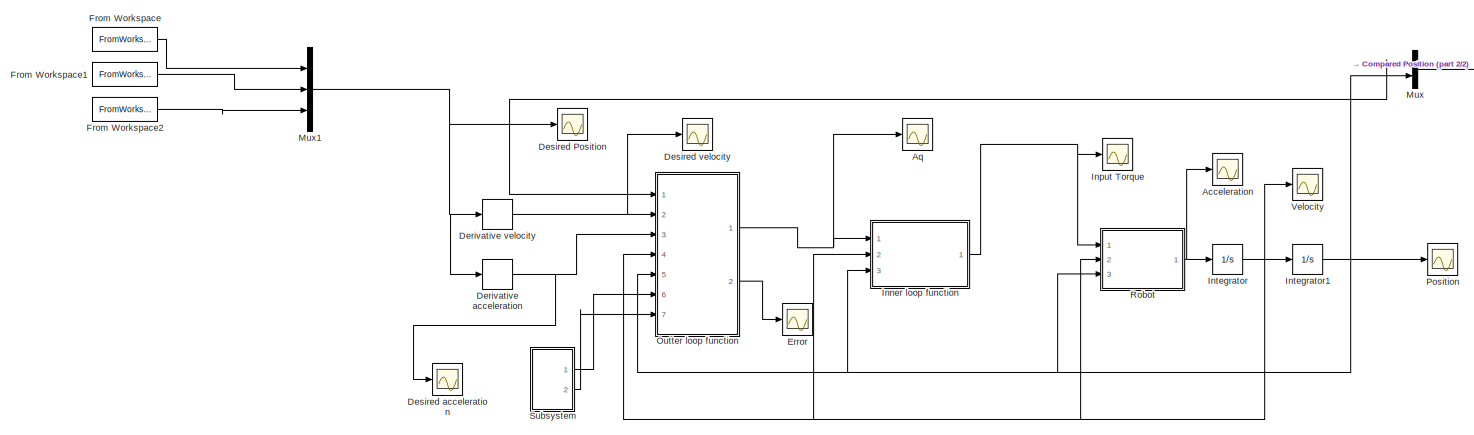
[diagram: root canvas - part 1/2, most of the canvas]
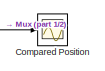
[diagram: root canvas - part 2/2, top right region]
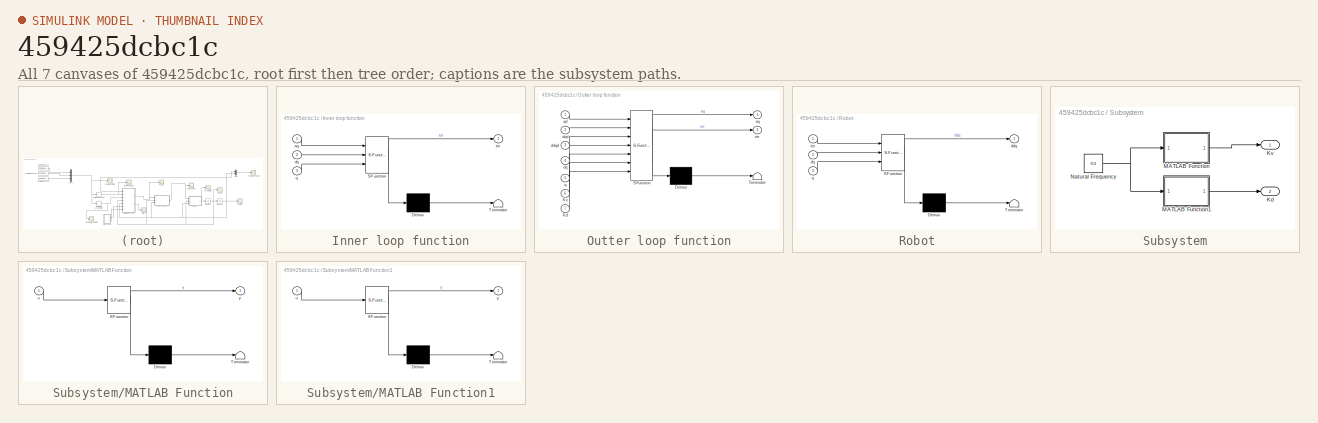
[diagram: thumbnail index - all 7 canvases of the model, root first then tree order]
MODEL slx_459425dcbc1c
KIND model
CONFIG AbsTol = auto
CONFIG EnableMultiTasking = off
CONFIG FixedStep = 0.1
CONFIG MaxStep = auto
CONFIG MinStep = auto
CONFIG RelTol = 1e-3
CONFIG SampleTimeConstraint = Unconstrained
CONFIG Solver = FixedStepAuto
CONFIG SolverName = FixedStepAuto
CONFIG StartTime = 0.0
CONFIG StopTime = 4
BLOCK [Scope] Acceleration
  Floating = off
  NumInputPorts = 1
  Ports = [1]
  ScopeSpecificationString = Simulink.scopes.TimeScopeBlockCfg('CurrentConfiguration', extmgr.ConfigurationSet(extmgr.Configuration('Core','General UI',true),extmgr.Configuration('Core','Source UI',true),extmgr.Configuration('Sources','WiredSimulink',true,'DataLoggingVariableName','ScopeData6'),extmgr.Configuration('Visuals','Time Domain',true),extmgr.Configuration('Tools','Plot Navigation',true),extmgr.Configuration('Tools',...<+40ch>
BLOCK [Scope] Aq
  Floating = off
  NumInputPorts = 1
  Ports = [1]
  ScopeSpecificationString = Simulink.scopes.TimeScopeBlockCfg('CurrentConfiguration', extmgr.ConfigurationSet(extmgr.Configuration('Core','General UI',true),extmgr.Configuration('Core','Source UI',true),extmgr.Configuration('Sources','WiredSimulink',true,'DataLoggingVariableName','ScopeData1'),extmgr.Configuration('Visuals','Time Domain',true,'SerializedDisplays',{struct('MinYLimReal','-381.69542','MaxYLimReal','1049.99861',...<+1487ch>
BLOCK [Scope] Compared Position
  Floating = off
  NumInputPorts = 1
  Ports = [1]
  ScopeSpecificationString = Simulink.scopes.TimeScopeBlockCfg('CurrentConfiguration', extmgr.ConfigurationSet(extmgr.Configuration('Core','General UI',true),extmgr.Configuration('Core','Source UI',true),extmgr.Configuration('Sources','WiredSimulink',true,'DataLoggingVariableName','ScopeData9'),extmgr.Configuration('Visuals','Time Domain',true,'SerializedDisplays',{struct('MinYLimReal','-7.04731','MaxYLimReal','63.40504','YLa...<+1490ch>
BLOCK [Derivative] Derivative acceleration
  CoefficientInTFapproximation = 0
BLOCK [Derivative] Derivative velocity
  CoefficientInTFapproximation = 0
BLOCK [Scope] Desired Position
  Floating = off
  NumInputPorts = 1
  Ports = [1]
  ScopeSpecificationString = Simulink.scopes.TimeScopeBlockCfg('CurrentConfiguration', extmgr.ConfigurationSet(extmgr.Configuration('Core','General UI',true),extmgr.Configuration('Core','Source UI',true),extmgr.Configuration('Sources','WiredSimulink',true,'DataLoggingVariableName','ScopeData5'),extmgr.Configuration('Visuals','Time Domain',true,'SerializedDisplays',{struct('MinYLimReal','-7.04731','MaxYLimReal','63.40504','YLa...<+1442ch>
BLOCK [Scope] Desired acceleration
  Floating = off
  NumInputPorts = 1
  Ports = [1]
  ScopeSpecificationString = Simulink.scopes.TimeScopeBlockCfg('CurrentConfiguration', extmgr.ConfigurationSet(extmgr.Configuration('Core','General UI',true),extmgr.Configuration('Core','Source UI',true),extmgr.Configuration('Sources','WiredSimulink',true,'DataLoggingVariableName','ScopeData2'),extmgr.Configuration('Visuals','Time Domain',true,'SerializedDisplays',{struct('MinYLimReal','-8846.62444','MaxYLimReal','13494.41194...<+1466ch>
BLOCK [Scope] Desired velocity 
  Floating = off
  NumInputPorts = 1
  Ports = [1]
  ScopeSpecificationString = Simulink.scopes.TimeScopeBlockCfg('CurrentConfiguration', extmgr.ConfigurationSet(extmgr.Configuration('Core','General UI',true),extmgr.Configuration('Core','Source UI',true),extmgr.Configuration('Sources','WiredSimulink',true),extmgr.Configuration('Visuals','Time Domain',true,'SerializedDisplays',{struct('MinYLimReal','-234.77394','MaxYLimReal','652.30601','YLabelReal','','MinYLimMag',' 0.00000',...<+1431ch>
BLOCK [Scope] Error
  Floating = off
  NumInputPorts = 1
  Ports = [1]
  ScopeSpecificationString = Simulink.scopes.TimeScopeBlockCfg('CurrentConfiguration', extmgr.ConfigurationSet(extmgr.Configuration('Core','General UI',true),extmgr.Configuration('Core','Source UI',true),extmgr.Configuration('Sources','WiredSimulink',true,'DataLoggingVariableName','ScopeData1'),extmgr.Configuration('Visuals','Time Domain',true,'SerializedDisplays',{struct('MinYLimReal','-9.16067','MaxYLimReal','63.63985','YLa...<+1475ch>
BLOCK [FromWorkspace] From Workspace
  Interpolate = off
  OutputAfterFinalValue = Setting to zero
  SampleTime = 0.1
  VariableName = path1
  ZeroCross = on
BLOCK [FromWorkspace] From Workspace1
  Interpolate = off
  OutputAfterFinalValue = Setting to zero
  SampleTime = 0.1
  VariableName = path2
  ZeroCross = on
BLOCK [FromWorkspace] From Workspace2
  Interpolate = off
  OutputAfterFinalValue = Setting to zero
  SampleTime = 0.1
  VariableName = path3
  ZeroCross = on
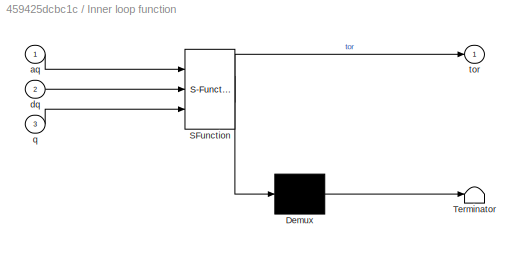
BLOCK [SubSystem] Inner loop function
  ErrorFcn = Stateflow.Translate.translate
  PermitHierarchicalResolution = ExplicitOnly
  Ports = [3, 1]
  RequestExecContextInheritance = off
  SFBlockType = MATLAB Function
  TreatAsAtomicUnit = on
BLOCK [Demux] Inner loop function/ Demux 
  Outputs = 1
  Ports = [1, 1]
BLOCK [S-Function] Inner loop function/ SFunction 
  EnableBusSupport = on
  FunctionName = sf_sfun
  PortCounts = [3 2]
  Ports = [3, 2]
  SFcnIsStateOwnerBlock = off
  SFunctionDeploymentMode = off
  Tag = Stateflow S-Function assignemnt_simulink 1
BLOCK [Terminator] Inner loop function/ Terminator 
BLOCK [Inport] Inner loop function/aq
  IconDisplay = Port number
BLOCK [Inport] Inner loop function/dq
  IconDisplay = Port number
  Port = 2
BLOCK [Inport] Inner loop function/q
  IconDisplay = Port number
  Port = 3
BLOCK [Outport] Inner loop function/tor
  IconDisplay = Port number
BLOCK [Scope] Input Torque
  Floating = off
  NumInputPorts = 1
  Ports = [1]
  ScopeSpecificationString = Simulink.scopes.TimeScopeBlockCfg('CurrentConfiguration', extmgr.ConfigurationSet(extmgr.Configuration('Core','General UI',true),extmgr.Configuration('Core','Source UI',true),extmgr.Configuration('Sources','WiredSimulink',true,'DataLoggingVariableName','ScopeData4'),extmgr.Configuration('Visuals','Time Domain',true,'SerializedDisplays',{struct('MinYLimReal','-3.92781','MaxYLimReal','12.08666','YLa...<+1474ch>
BLOCK [Integrator] Integrator
  InitialCondition = [0,0,0]
  Ports = [1, 1]
BLOCK [Integrator] Integrator1
  InitialCondition = [0,0,0]
  Ports = [1, 1]
BLOCK [Mux] Mux
  DisplayOption = bar
  Inputs = 2
  Ports = [2, 1]
BLOCK [Mux] Mux1
  DisplayOption = bar
  Inputs = 3
  Ports = [3, 1]
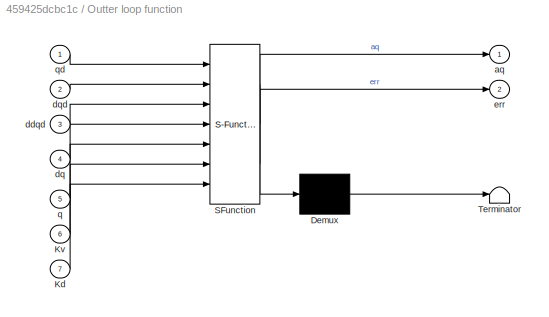
BLOCK [SubSystem] Outter loop function
  ErrorFcn = Stateflow.Translate.translate
  PermitHierarchicalResolution = ExplicitOnly
  Ports = [7, 2]
  RequestExecContextInheritance = off
  SFBlockType = MATLAB Function
  TreatAsAtomicUnit = on
BLOCK [Demux] Outter loop function/ Demux 
  Outputs = 1
  Ports = [1, 1]
BLOCK [S-Function] Outter loop function/ SFunction 
  EnableBusSupport = on
  FunctionName = sf_sfun
  PortCounts = [7 3]
  Ports = [7, 3]
  SFcnIsStateOwnerBlock = off
  SFunctionDeploymentMode = off
  Tag = Stateflow S-Function assignemnt_simulink 2
BLOCK [Terminator] Outter loop function/ Terminator 
BLOCK [Inport] Outter loop function/Kd
  IconDisplay = Port number
  Port = 7
BLOCK [Inport] Outter loop function/Kv
  IconDisplay = Port number
  Port = 6
BLOCK [Outport] Outter loop function/aq
  IconDisplay = Port number
BLOCK [Inport] Outter loop function/ddqd
  IconDisplay = Port number
  Port = 3
BLOCK [Inport] Outter loop function/dq
  IconDisplay = Port number
  Port = 4
BLOCK [Inport] Outter loop function/dqd
  IconDisplay = Port number
  Port = 2
BLOCK [Outport] Outter loop function/err
  IconDisplay = Port number
  Port = 2
BLOCK [Inport] Outter loop function/q
  IconDisplay = Port number
  Port = 5
BLOCK [Inport] Outter loop function/qd
  IconDisplay = Port number
BLOCK [Scope] Position 
  Floating = off
  NumInputPorts = 1
  Ports = [1]
  ScopeSpecificationString = Simulink.scopes.TimeScopeBlockCfg('CurrentConfiguration', extmgr.ConfigurationSet(extmgr.Configuration('Core','General UI',true),extmgr.Configuration('Core','Source UI',true),extmgr.Configuration('Sources','WiredSimulink',true,'DataLoggingVariableName','ScopeData7'),extmgr.Configuration('Visuals','Time Domain',true,'SerializedDisplays',{struct('MinYLimReal','-0.63072','MaxYLimReal','5.67446','YLab...<+1432ch>
BLOCK [SubSystem] Robot
  ErrorFcn = Stateflow.Translate.translate
  PermitHierarchicalResolution = ExplicitOnly
  Ports = [3, 1]
  RequestExecContextInheritance = off
  SFBlockType = MATLAB Function
  TreatAsAtomicUnit = on
BLOCK [Demux] Robot/ Demux 
  Outputs = 1
  Ports = [1, 1]
BLOCK [S-Function] Robot/ SFunction 
  EnableBusSupport = on
  FunctionName = sf_sfun
  PortCounts = [3 2]
  Ports = [3, 2]
  SFcnIsStateOwnerBlock = off
  SFunctionDeploymentMode = off
  Tag = Stateflow S-Function assignemnt_simulink 3
BLOCK [Terminator] Robot/ Terminator 
BLOCK [Outport] Robot/ddq
  IconDisplay = Port number
BLOCK [Inport] Robot/dq
  IconDisplay = Port number
  Port = 2
BLOCK [Inport] Robot/q
  IconDisplay = Port number
  Port = 3
BLOCK [Inport] Robot/tor
  IconDisplay = Port number
BLOCK [SubSystem] Subsystem
  Ports = [0, 2]
  RequestExecContextInheritance = off
BLOCK [Outport] Subsystem/Kd
  IconDisplay = Port number
  Port = 2
BLOCK [Outport] Subsystem/Kv
  IconDisplay = Port number
BLOCK [SubSystem] Subsystem/MATLAB Function
  ErrorFcn = Stateflow.Translate.translate
  PermitHierarchicalResolution = ExplicitOnly
  Ports = [1, 1]
  RequestExecContextInheritance = off
  SFBlockType = MATLAB Function
  TreatAsAtomicUnit = on
BLOCK [Demux] Subsystem/MATLAB Function/ Demux 
  Outputs = 1
  Ports = [1, 1]
BLOCK [S-Function] Subsystem/MATLAB Function/ SFunction 
  EnableBusSupport = on
  FunctionName = sf_sfun
  PortCounts = [1 2]
  Ports = [1, 2]
  SFcnIsStateOwnerBlock = off
  SFunctionDeploymentMode = off
  Tag = Stateflow S-Function assignemnt_simulink 4
BLOCK [Terminator] Subsystem/MATLAB Function/ Terminator 
BLOCK [Inport] Subsystem/MATLAB Function/u
  IconDisplay = Port number
BLOCK [Outport] Subsystem/MATLAB Function/y
  IconDisplay = Port number
BLOCK [SubSystem] Subsystem/MATLAB Function1
  ErrorFcn = Stateflow.Translate.translate
  PermitHierarchicalResolution = ExplicitOnly
  Ports = [1, 1]
  RequestExecContextInheritance = off
  SFBlockType = MATLAB Function
  TreatAsAtomicUnit = on
BLOCK [Demux] Subsystem/MATLAB Function1/ Demux 
  Outputs = 1
  Ports = [1, 1]
BLOCK [S-Function] Subsystem/MATLAB Function1/ SFunction 
  EnableBusSupport = on
  FunctionName = sf_sfun
  PortCounts = [1 2]
  Ports = [1, 2]
  SFcnIsStateOwnerBlock = off
  SFunctionDeploymentMode = off
  Tag = Stateflow S-Function assignemnt_simulink 5
BLOCK [Terminator] Subsystem/MATLAB Function1/ Terminator 
BLOCK [Inport] Subsystem/MATLAB Function1/u
  IconDisplay = Port number
BLOCK [Outport] Subsystem/MATLAB Function1/y
  IconDisplay = Port number
BLOCK [Constant] Subsystem/Natural Frequency
  Value = 0.3
BLOCK [Scope] Velocity
  Floating = off
  NumInputPorts = 1
  Ports = [1]
  ScopeSpecificationString = Simulink.scopes.TimeScopeBlockCfg('CurrentConfiguration', extmgr.ConfigurationSet(extmgr.Configuration('Core','General UI',true),extmgr.Configuration('Core','Source UI',true),extmgr.Configuration('Sources','WiredSimulink',true,'DataLoggingVariableName','ScopeData8'),extmgr.Configuration('Visuals','Time Domain',true,'SerializedDisplays',{struct('MinYLimReal','-2.45955','MaxYLimReal','22.12896','YLa...<+1405ch>
NET Derivative acceleration:1 -> Desired acceleration:1, Outter loop function:3
NET Derivative velocity:1 -> Desired velocity :1, Outter loop function:2
LINE From Workspace1:1 -> Mux1:2
LINE From Workspace2:1 -> Mux1:3
LINE From Workspace:1 -> Mux1:1
NET Inner loop function:1 -> Input Torque:1, Robot:1
NET Integrator1:1 -> Inner loop function:3, Mux:2, Outter loop function:5, Position :1, Robot:3
NET Integrator:1 -> Inner loop function:2, Integrator1:1, Outter loop function:4, Robot:2, Velocity:1
NET Mux1:1 -> Derivative acceleration:1, Derivative velocity:1, Desired Position:1, Mux:1, Outter loop function:1
LINE Mux:1 -> Compared Position:1
NET Outter loop function:1 -> Aq:1, Inner loop function:1
LINE Outter loop function:2 -> Error:1
NET Robot:1 -> Acceleration:1, Integrator:1
LINE Subsystem/MATLAB Function1:1 -> Subsystem/Kd:1
LINE Subsystem/MATLAB Function:1 -> Subsystem/Kv:1
NET Subsystem/Natural Frequency:1 -> Subsystem/MATLAB Function1:1, Subsystem/MATLAB Function:1
LINE Subsystem:1 -> Outter loop function:6
LINE Subsystem:2 -> Outter loop function:7
note: NET lines group one-source signal fan-out (src -> all destinations, sorted); 1:1 wires keep LINE
CHART Inner loop function states=1 transitions=1
  STATE_LABEL 'eML_blk_kernel()'
  STATE_LABEL "SCRIPT:\nfunction tor = RPRlinkdyn(aq,dq,q)\ncoder.extrinsic('innerfunction');\ntor = zeros(3,1);\ntor=innerfunction(q,dq,aq);\n\nend\n\n"
CHART Outter loop function states=1 transitions=1
  STATE_LABEL 'eML_blk_kernel()'
  STATE_LABEL 'SCRIPT:\nfunction [aq,err] = control(qd,dqd,ddqd,dq,q,Kv,Kd)\n% controls example for MSE 4401\n \naq = ddqd-Kd*(q-qd)-Kv*(dq-dqd);\nerr = [qd-q];\n\n'
CHART Robot states=1 transitions=1
  STATE_LABEL 'eML_blk_kernel()'
  STATE_LABEL "SCRIPT:\nfunction ddq = RPRlinkdyn(tor,dq,q)\ncoder.extrinsic('robot');\nddq = zeros(3,1);\nddq=robot(q,dq,tor);\nend\n\n\n\n"
CHART Subsystem/MATLAB Function states=1 transitions=1
  STATE_LABEL 'eML_blk_kernel()'
  STATE_LABEL 'SCRIPT:\nfunction y = dergain(u)\n\ny = [2*u 0 0\n    0 2*u 0\n    0 0 2*u];\n'
CHART Subsystem/MATLAB Function1 states=1 transitions=1
  STATE_LABEL 'eML_blk_kernel()'
  STATE_LABEL 'SCRIPT:\nfunction y = postgain(u)\n\ny = [u*u 0 0\n    0 u*u 0\n    0 0 u*u];\n'
